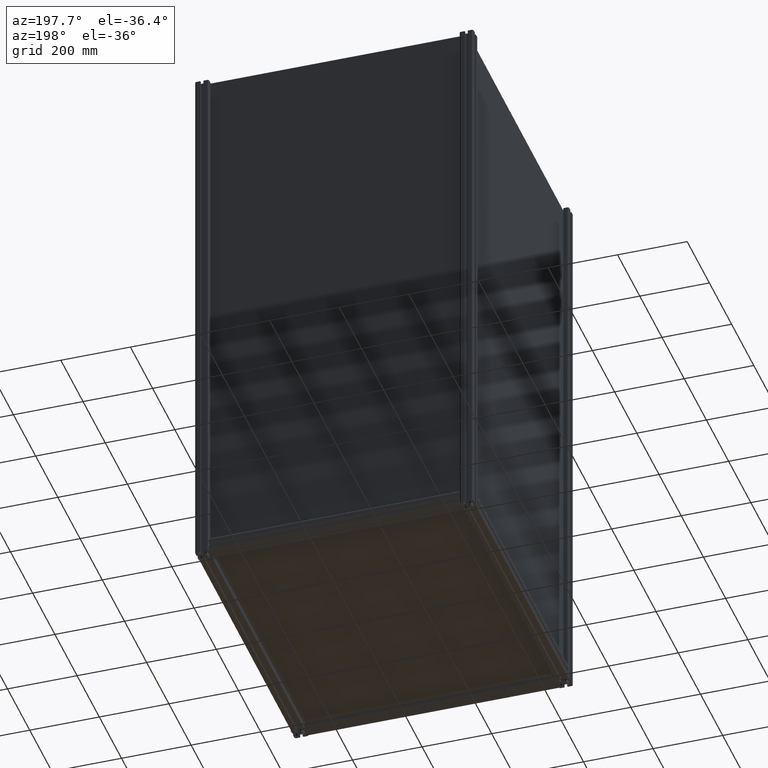
[diagram: clean part render]
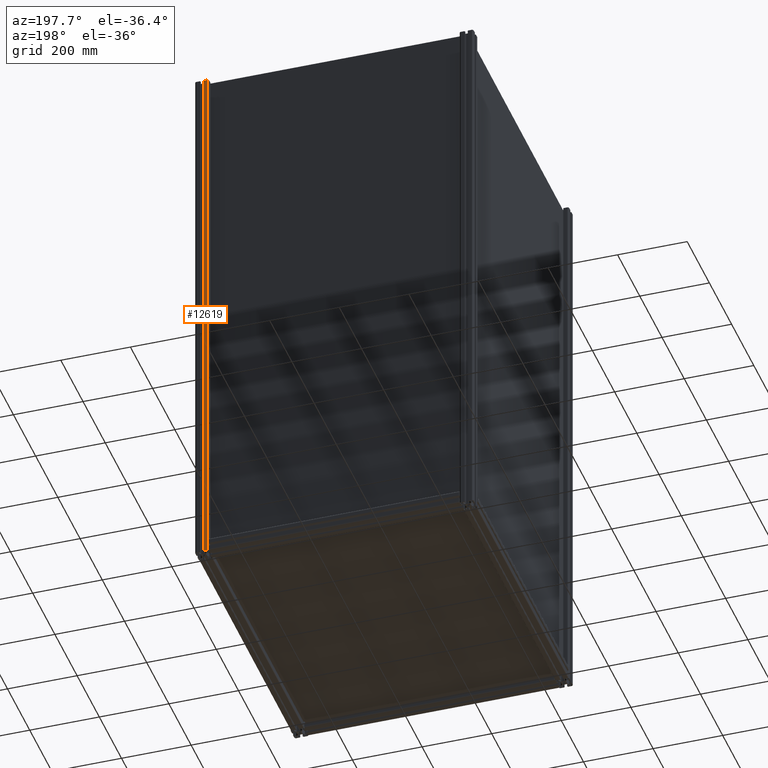
[diagram: same view with one face highlighted and labeled with its STEP entity id]
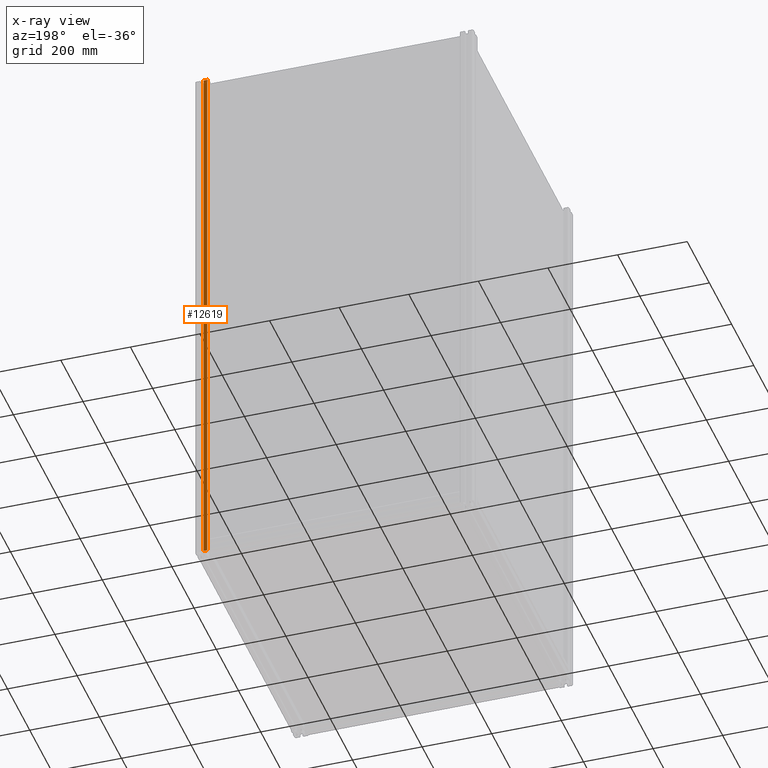
[diagram: x-ray of the same camera — body ghosted, the highlighted face saturated]
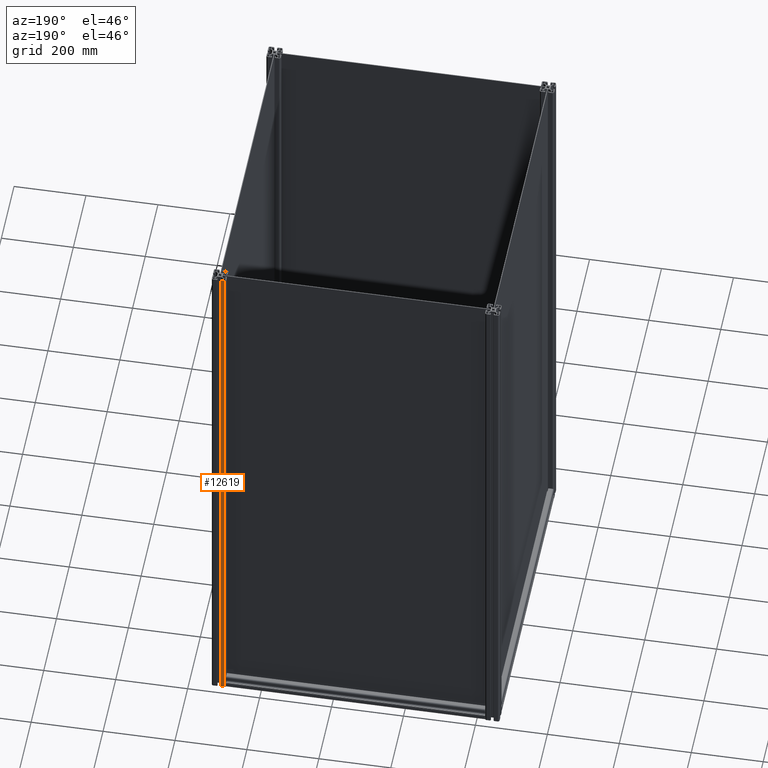
[diagram: same view with one face highlighted and labeled with its STEP entity id]
A machine part, auxiliary view. The second image highlights one B-rep face of the part: STEP entity #12619.
The next image is the same camera in x-ray: the body ghosted, the highlighted face saturated — about 0% of this face is hidden behind the body in this view.
A second angle (auxiliary view) of the same face is appended — the face is thin or edge-on in the first view.
In plain terms, the highlighted planar face has unit normal (0, -1, 0).
Its self-contained STEP definition (entity closure, byte-faithful):
#14 = DIRECTION ( 'NONE',  ( 0.000000000000000000, 0.000000000000000000, -1.000000000000000000 ) ) ;
#462 = DIRECTION ( 'NONE',  ( -1.000000000000000000, 3.336006684569905494E-16, 0.000000000000000000 ) ) ;
#962 = VECTOR ( 'NONE', #14, 1000.000000000000000 ) ;
#1036 = LINE ( 'NONE', #3973, #12145 ) ;
#1045 = ORIENTED_EDGE ( 'NONE', *, *, #13675, .F. ) ;
#1171 = CARTESIAN_POINT ( 'NONE',  ( -15.50000000000309974, 20.00000000000180123, 800.0000000000000000 ) ) ;
#1308 = DIRECTION ( 'NONE',  ( 0.000000000000000000, 0.000000000000000000, 1.000000000000000000 ) ) ;
#1356 = CARTESIAN_POINT ( 'NONE',  ( -5.100000000000360245, 20.00000000000180123, -1000.000000000000000 ) ) ;
#1390 = DIRECTION ( 'NONE',  ( 0.000000000000000000, 0.000000000000000000, -1.000000000000000000 ) ) ;
#1905 = FACE_OUTER_BOUND ( 'NONE', #10224, .T. ) ;
#2217 = DIRECTION ( 'NONE',  ( 1.000000000000000000, -2.335204679198932761E-15, 0.000000000000000000 ) ) ;
#2251 = VERTEX_POINT ( 'NONE', #4786 ) ;
#2640 = LINE ( 'NONE', #16424, #8118 ) ;
#2737 = CARTESIAN_POINT ( 'NONE',  ( -5.100000000000360245, 20.00000000000180123, 600.0000000000000000 ) ) ;
#3708 = CARTESIAN_POINT ( 'NONE',  ( -5.100000000000360245, 20.00000000000180123, 600.0000000000000000 ) ) ;
#3973 = CARTESIAN_POINT ( 'NONE',  ( -15.50000000000309974, 20.00000000000182609, -1000.000000000000000 ) ) ;
#4009 = ORIENTED_EDGE ( 'NONE', *, *, #12109, .F. ) ;
#4140 = EDGE_CURVE ( 'NONE', #9963, #7509, #4929, .T. ) ;
#4786 = CARTESIAN_POINT ( 'NONE',  ( -15.50000000000309974, 20.00000000000183675, -1000.000000000000000 ) ) ;
#4929 = LINE ( 'NONE', #2737, #10526 ) ;
#6236 = LINE ( 'NONE', #1171, #962 ) ;
#6328 = PLANE ( 'NONE',  #15122 ) ;
#7238 = VERTEX_POINT ( 'NONE', #1356 ) ;
#7509 = VERTEX_POINT ( 'NONE', #13368 ) ;
#8118 = VECTOR ( 'NONE', #1308, 1000.000000000000000 ) ;
#9274 = CARTESIAN_POINT ( 'NONE',  ( -5.100000000000360245, 20.00000000000180123, 800.0000000000000000 ) ) ;
#9958 = EDGE_CURVE ( 'NONE', #7238, #9963, #2640, .T. ) ;
#9963 = VERTEX_POINT ( 'NONE', #3708 ) ;
#10224 = EDGE_LOOP ( 'NONE', ( #15114, #14605, #4009, #1045 ) ) ;
#10321 = DIRECTION ( 'NONE',  ( 0.000000000000000000, -1.000000000000000000, 0.000000000000000000 ) ) ;
#10526 = VECTOR ( 'NONE', #462, 1000.000000000000000 ) ;
#12109 = EDGE_CURVE ( 'NONE', #2251, #7238, #1036, .T. ) ;
#12145 = VECTOR ( 'NONE', #2217, 1000.000000000000000 ) ;
#12619 = ADVANCED_FACE ( 'NONE', ( #1905 ), #6328, .F. ) ;
#13368 = CARTESIAN_POINT ( 'NONE',  ( -15.50000000000309974, 20.00000000000180123, 600.0000000000000000 ) ) ;
#13675 = EDGE_CURVE ( 'NONE', #7509, #2251, #6236, .T. ) ;
#14605 = ORIENTED_EDGE ( 'NONE', *, *, #9958, .F. ) ;
#15114 = ORIENTED_EDGE ( 'NONE', *, *, #4140, .F. ) ;
#15122 = AXIS2_PLACEMENT_3D ( 'NONE', #9274, #10321, #1390 ) ;
#16424 = CARTESIAN_POINT ( 'NONE',  ( -5.100000000000360245, 20.00000000000180123, 800.0000000000000000 ) ) ;